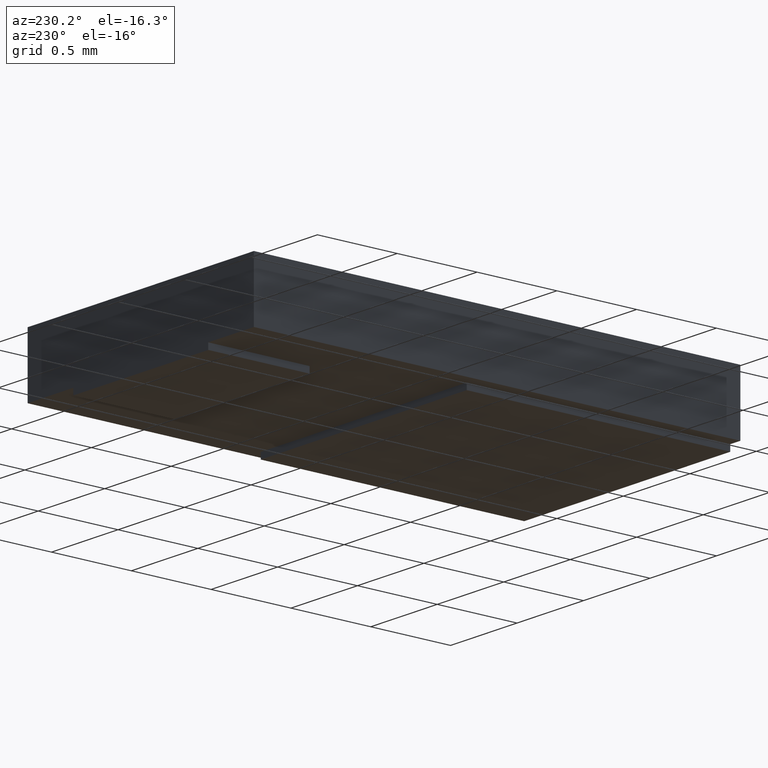
[diagram: clean part render]
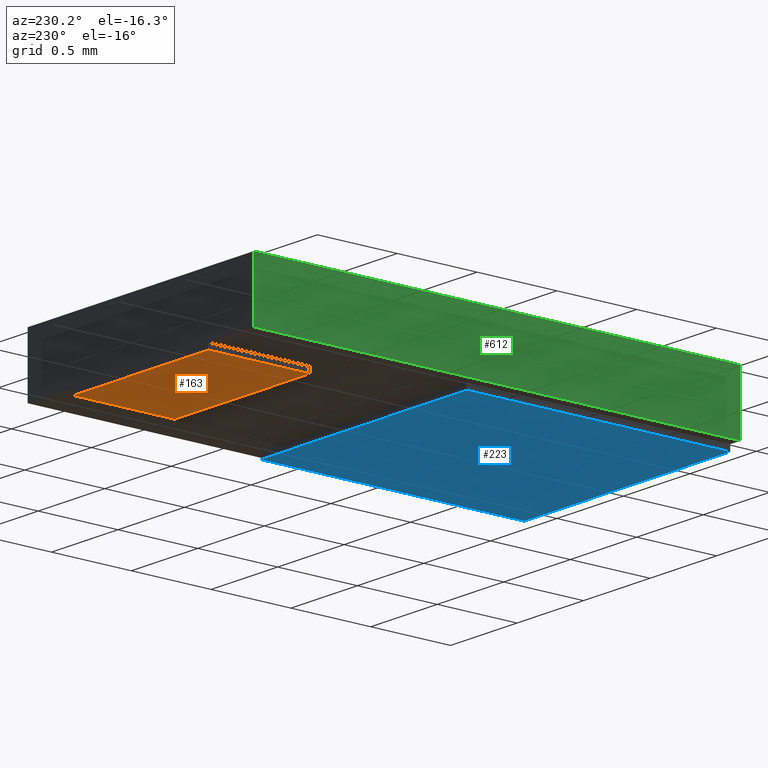
[diagram: same view with three faces highlighted in distinct colors, each labeled with its STEP entity id]
A machine part, auxiliary view with three faces highlighted in distinct colors.
Their STEP definitions:

[orange] entity #163 — the highlighted planar face has unit normal (0, 0, 1).
#17 = LINE ( 'NONE', #81, #487 ) ;
#19 = ORIENTED_EDGE ( 'NONE', *, *, #629, .F. ) ;
#26 = DIRECTION ( 'NONE',  ( -9.389164867444125509E-05, 0.9999999955921791139, 0.000000000000000000 ) ) ;
#65 = DIRECTION ( 'NONE',  ( 1.000000000000000000, 0.000000000000000000, -0.000000000000000000 ) ) ;
#81 = CARTESIAN_POINT ( 'NONE',  ( 0.01999973361464313371, 0.06000000000003780087, 0.000000000000000000 ) ) ;
#108 = EDGE_LOOP ( 'NONE', ( #19, #345, #392, #341 ) ) ;
#120 = PLANE ( 'NONE',  #342 ) ;
#146 = CARTESIAN_POINT ( 'NONE',  ( -0.01999791909383929686, 0.03499999729501723778, 0.000000000000000000 ) ) ;
#162 = VECTOR ( 'NONE', #454, 39.37007874015748143 ) ;
#163 = ADVANCED_FACE ( 'NONE', ( #220 ), #120, .F. ) ;
#220 = FACE_OUTER_BOUND ( 'NONE', #108, .T. ) ;
#284 = EDGE_CURVE ( 'NONE', #580, #296, #458, .T. ) ;
#285 = DIRECTION ( 'NONE',  ( -1.000000000000000000, 0.000000000000000000, 0.000000000000000000 ) ) ;
#287 = VERTEX_POINT ( 'NONE', #554 ) ;
#296 = VERTEX_POINT ( 'NONE', #498 ) ;
#299 = CARTESIAN_POINT ( 'NONE',  ( -0.01999973361463958099, 0.06000000000003780087, 0.000000000000000000 ) ) ;
#313 = CARTESIAN_POINT ( 'NONE',  ( 0.000000000000000000, 0.000000000000000000, 0.000000000000000000 ) ) ;
#315 = CARTESIAN_POINT ( 'NONE',  ( -0.01999973361463958099, 0.06000000000003780087, 0.000000000000000000 ) ) ;
#320 = LINE ( 'NONE', #315, #657 ) ;
#341 = ORIENTED_EDGE ( 'NONE', *, *, #532, .F. ) ;
#342 = AXIS2_PLACEMENT_3D ( 'NONE', #313, #476, #65 ) ;
#345 = ORIENTED_EDGE ( 'NONE', *, *, #632, .F. ) ;
#384 = VERTEX_POINT ( 'NONE', #299 ) ;
#392 = ORIENTED_EDGE ( 'NONE', *, *, #284, .F. ) ;
#412 = CARTESIAN_POINT ( 'NONE',  ( -0.01999791909383929686, 0.03499999729501723778, 0.000000000000000000 ) ) ;
#454 = DIRECTION ( 'NONE',  ( 1.000000000000000000, 0.000000000000000000, 0.000000000000000000 ) ) ;
#458 = LINE ( 'NONE', #146, #162 ) ;
#476 = DIRECTION ( 'NONE',  ( 0.000000000000000000, 0.000000000000000000, 1.000000000000000000 ) ) ;
#487 = VECTOR ( 'NONE', #285, 39.37007874015748143 ) ;
#498 = CARTESIAN_POINT ( 'NONE',  ( 0.02000208090612431988, 0.03499999729501723778, 0.000000000000000000 ) ) ;
#514 = DIRECTION ( 'NONE',  ( 7.258082396677187364E-05, -0.9999999973660119723, 0.000000000000000000 ) ) ;
#532 = EDGE_CURVE ( 'NONE', #384, #580, #320, .T. ) ;
#537 = LINE ( 'NONE', #539, #603 ) ;
#539 = CARTESIAN_POINT ( 'NONE',  ( 0.02000208090612431988, 0.03499999729501723778, 0.000000000000000000 ) ) ;
#554 = CARTESIAN_POINT ( 'NONE',  ( 0.01999973361464313371, 0.06000000000003780087, 0.000000000000000000 ) ) ;
#580 = VERTEX_POINT ( 'NONE', #412 ) ;
#603 = VECTOR ( 'NONE', #26, 39.37007874015749564 ) ;
#629 = EDGE_CURVE ( 'NONE', #287, #384, #17, .T. ) ;
#632 = EDGE_CURVE ( 'NONE', #296, #287, #537, .T. ) ;
#657 = VECTOR ( 'NONE', #514, 39.37007874015748143 ) ;

[blue] entity #223 — the highlighted planar face has unit normal (-0, 0, 1).
#2 = CARTESIAN_POINT ( 'NONE',  ( -0.03049991361892168129, -0.05999999999984240162, 0.000000000000000000 ) ) ;
#4 = VECTOR ( 'NONE', #616, 39.37007874015748143 ) ;
#9 = DIRECTION ( 'NONE',  ( -0.000000000000000000, 0.000000000000000000, 1.000000000000000000 ) ) ;
#66 = VERTEX_POINT ( 'NONE', #259 ) ;
#70 = EDGE_LOOP ( 'NONE', ( #76, #664, #571, #222 ) ) ;
#76 = ORIENTED_EDGE ( 'NONE', *, *, #653, .F. ) ;
#83 = FACE_OUTER_BOUND ( 'NONE', #70, .T. ) ;
#103 = CARTESIAN_POINT ( 'NONE',  ( -0.03049791909393206879, 0.004999993584078765707, 0.000000000000000000 ) ) ;
#178 = DIRECTION ( 'NONE',  ( 1.000000000000000000, 0.000000000000000000, 0.000000000000000000 ) ) ;
#218 = DIRECTION ( 'NONE',  ( -0.9999999999999925615, -1.216743282002046877E-07, 0.000000000000000000 ) ) ;
#222 = ORIENTED_EDGE ( 'NONE', *, *, #588, .F. ) ;
#223 = ADVANCED_FACE ( 'NONE', ( #83 ), #441, .F. ) ;
#228 = DIRECTION ( 'NONE',  ( -3.068500285466872627E-05, -0.9999999995292152555, 0.000000000000000000 ) ) ;
#231 = LINE ( 'NONE', #639, #316 ) ;
#259 = CARTESIAN_POINT ( 'NONE',  ( 0.03049991361892523400, -0.05999999999984240162, 0.000000000000000000 ) ) ;
#301 = VECTOR ( 'NONE', #385, 39.37007874015748854 ) ;
#308 = LINE ( 'NONE', #520, #615 ) ;
#316 = VECTOR ( 'NONE', #228, 39.37007874015748854 ) ;
#324 = CARTESIAN_POINT ( 'NONE',  ( 0.03049991361892523400, -0.05999999999984240162, 0.000000000000000000 ) ) ;
#385 = DIRECTION ( 'NONE',  ( 3.334288087850889571E-05, 0.9999999994441262086, 0.000000000000000000 ) ) ;
#388 = LINE ( 'NONE', #324, #301 ) ;
#441 = PLANE ( 'NONE',  #658 ) ;
#489 = CARTESIAN_POINT ( 'NONE',  ( 0.03050208090621708487, 0.005000001006212785939, 0.000000000000000000 ) ) ;
#520 = CARTESIAN_POINT ( 'NONE',  ( 0.03050208090621708487, 0.005000001006212785939, 0.000000000000000000 ) ) ;
#527 = VERTEX_POINT ( 'NONE', #103 ) ;
#529 = VERTEX_POINT ( 'NONE', #559 ) ;
#544 = EDGE_CURVE ( 'NONE', #643, #527, #308, .T. ) ;
#559 = CARTESIAN_POINT ( 'NONE',  ( -0.03049991361892168129, -0.05999999999984240162, 0.000000000000000000 ) ) ;
#563 = LINE ( 'NONE', #2, #4 ) ;
#571 = ORIENTED_EDGE ( 'NONE', *, *, #620, .F. ) ;
#588 = EDGE_CURVE ( 'NONE', #529, #66, #563, .T. ) ;
#615 = VECTOR ( 'NONE', #218, 39.37007874015748143 ) ;
#616 = DIRECTION ( 'NONE',  ( 1.000000000000000000, 0.000000000000000000, 0.000000000000000000 ) ) ;
#620 = EDGE_CURVE ( 'NONE', #66, #643, #388, .T. ) ;
#639 = CARTESIAN_POINT ( 'NONE',  ( -0.03049791909393206879, 0.004999993584078765707, 0.000000000000000000 ) ) ;
#641 = CARTESIAN_POINT ( 'NONE',  ( 0.000000000000000000, 0.000000000000000000, 0.000000000000000000 ) ) ;
#643 = VERTEX_POINT ( 'NONE', #489 ) ;
#653 = EDGE_CURVE ( 'NONE', #527, #529, #231, .T. ) ;
#658 = AXIS2_PLACEMENT_3D ( 'NONE', #641, #9, #178 ) ;
#664 = ORIENTED_EDGE ( 'NONE', *, *, #544, .F. ) ;

[green] entity #612 — the highlighted planar face has unit normal (-1, -0, 0).
#22 = DIRECTION ( 'NONE',  ( 0.000000000000000000, 0.000000000000000000, 1.000000000000000000 ) ) ;
#31 = CARTESIAN_POINT ( 'NONE',  ( -0.03350000000000363798, -0.05999999999994543032, 0.01649999999999999731 ) ) ;
#34 = EDGE_CURVE ( 'NONE', #237, #533, #40, .T. ) ;
#36 = CARTESIAN_POINT ( 'NONE',  ( -0.03350000000000363798, 0.000000000000000000, 0.01649999999999999731 ) ) ;
#40 = LINE ( 'NONE', #509, #165 ) ;
#58 = VECTOR ( 'NONE', #339, 39.37007874015748143 ) ;
#64 = CARTESIAN_POINT ( 'NONE',  ( -0.03350000000000363798, -0.05999999999994543032, 0.001500000000000000031 ) ) ;
#67 = DIRECTION ( 'NONE',  ( -1.000000000000000000, -0.000000000000000000, 0.000000000000000000 ) ) ;
#127 = PLANE ( 'NONE',  #132 ) ;
#132 = AXIS2_PLACEMENT_3D ( 'NONE', #636, #67, #22 ) ;
#165 = VECTOR ( 'NONE', #252, 39.37007874015748143 ) ;
#184 = EDGE_LOOP ( 'NONE', ( #275, #395, #568, #650 ) ) ;
#200 = EDGE_CURVE ( 'NONE', #398, #293, #263, .T. ) ;
#227 = EDGE_CURVE ( 'NONE', #533, #293, #391, .T. ) ;
#235 = CARTESIAN_POINT ( 'NONE',  ( -0.03350000000000363798, 0.05999999999994543032, 0.1539372584126108556 ) ) ;
#237 = VERTEX_POINT ( 'NONE', #31 ) ;
#241 = DIRECTION ( 'NONE',  ( 0.000000000000000000, 1.000000000000000000, 0.000000000000000000 ) ) ;
#250 = VECTOR ( 'NONE', #325, 39.37007874015748143 ) ;
#252 = DIRECTION ( 'NONE',  ( -0.000000000000000000, -0.000000000000000000, -1.000000000000000000 ) ) ;
#263 = LINE ( 'NONE', #235, #250 ) ;
#275 = ORIENTED_EDGE ( 'NONE', *, *, #200, .T. ) ;
#293 = VERTEX_POINT ( 'NONE', #356 ) ;
#325 = DIRECTION ( 'NONE',  ( -0.000000000000000000, -0.000000000000000000, -1.000000000000000000 ) ) ;
#339 = DIRECTION ( 'NONE',  ( -0.000000000000000000, 1.000000000000000000, 0.000000000000000000 ) ) ;
#352 = VECTOR ( 'NONE', #241, 39.37007874015748143 ) ;
#356 = CARTESIAN_POINT ( 'NONE',  ( -0.03350000000000363798, 0.05999999999994543032, 0.001500000000000000031 ) ) ;
#391 = LINE ( 'NONE', #587, #58 ) ;
#395 = ORIENTED_EDGE ( 'NONE', *, *, #227, .F. ) ;
#398 = VERTEX_POINT ( 'NONE', #447 ) ;
#416 = EDGE_CURVE ( 'NONE', #237, #398, #496, .T. ) ;
#447 = CARTESIAN_POINT ( 'NONE',  ( -0.03350000000000363798, 0.05999999999994543032, 0.01649999999999999731 ) ) ;
#486 = FACE_OUTER_BOUND ( 'NONE', #184, .T. ) ;
#496 = LINE ( 'NONE', #36, #352 ) ;
#509 = CARTESIAN_POINT ( 'NONE',  ( -0.03350000000000363798, -0.05999999999994543032, 0.1539372584126108556 ) ) ;
#533 = VERTEX_POINT ( 'NONE', #64 ) ;
#568 = ORIENTED_EDGE ( 'NONE', *, *, #34, .F. ) ;
#587 = CARTESIAN_POINT ( 'NONE',  ( -0.03350000000000363798, 0.000000000000000000, 0.001500000000000000031 ) ) ;
#612 = ADVANCED_FACE ( 'NONE', ( #486 ), #127, .T. ) ;
#636 = CARTESIAN_POINT ( 'NONE',  ( -0.03350000000000363798, 0.000000000000000000, 0.1539372584126108556 ) ) ;
#650 = ORIENTED_EDGE ( 'NONE', *, *, #416, .T. ) ;